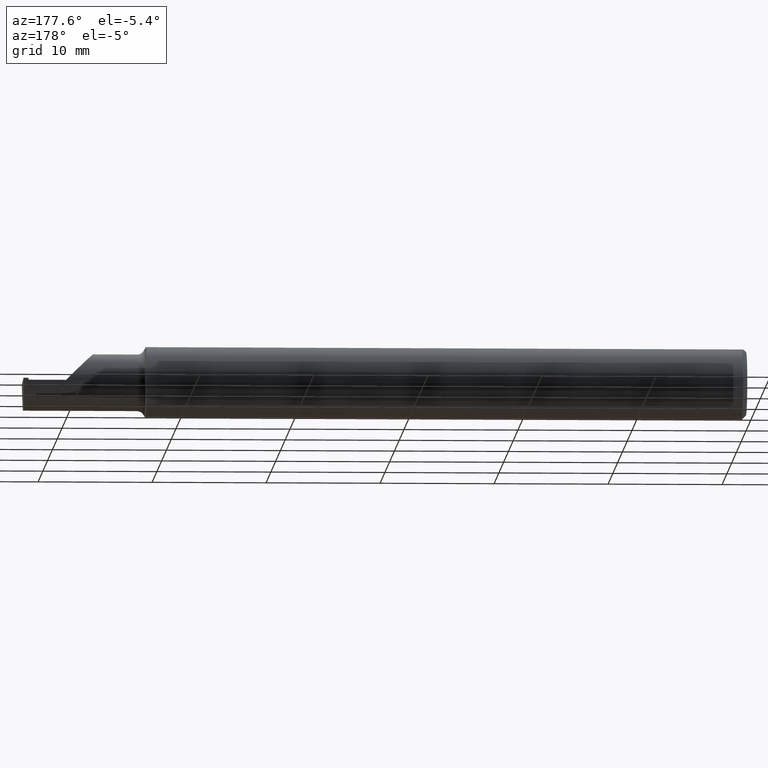
[diagram: clean part render]
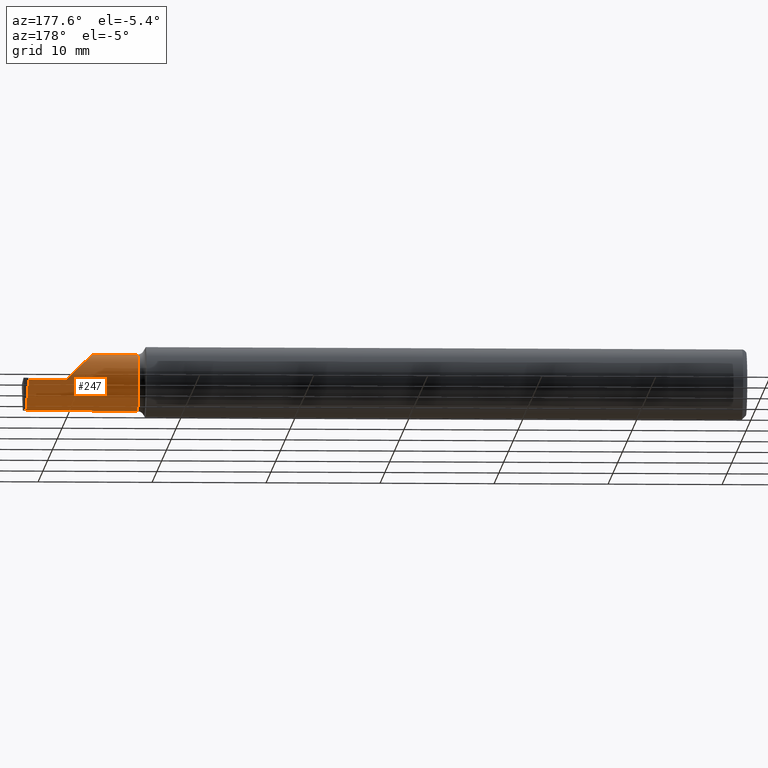
[diagram: same view with one face highlighted and labeled with its STEP entity id]
A machine part, auxiliary view. The second image highlights one B-rep face of the part: STEP entity #247.
In plain terms, the highlighted cylindrical surface (edge-blend (fillet) strip) has radius 2.4892 mm, axis along (-1, -0, -0).
Its self-contained STEP definition (entity closure, byte-faithful):
#3 = AXIS2_PLACEMENT_3D ( 'NONE', #120, #241, #298 ) ;
#6 = EDGE_CURVE ( 'NONE', #556, #52, #243, .T. ) ;
#7 = ORIENTED_EDGE ( 'NONE', *, *, #367, .F. ) ;
#24 = ORIENTED_EDGE ( 'NONE', *, *, #6, .T. ) ;
#35 = CARTESIAN_POINT ( 'NONE',  ( 2.482499999999999929, 0.05414999123725500879, -4.144270477499314721E-05 ) ) ;
#41 =( BOUNDED_CURVE ( )  B_SPLINE_CURVE ( 3, ( #533, #606, #594, #408 ),
 .UNSPECIFIED., .F., .F. ) 
 B_SPLINE_CURVE_WITH_KNOTS ( ( 4, 4 ),
 ( 0.000000000000000000, 1.570796326794896558 ),
 .UNSPECIFIED. ) 
 CURVE ( )  GEOMETRIC_REPRESENTATION_ITEM ( )  RATIONAL_B_SPLINE_CURVE ( ( 1.000000000000000000, 0.8047378541243649375, 0.8047378541243649375, 1.000000000000000000 ) ) 
 REPRESENTATION_ITEM ( '' )  );
#47 = CARTESIAN_POINT ( 'NONE',  ( 2.350000000000000089, 0.05414999999999988572, 1.836970198721028825E-17 ) ) ;
#49 = VERTEX_POINT ( 'NONE', #333 ) ;
#51 = CARTESIAN_POINT ( 'NONE',  ( 2.487354867654527624, 0.002850604310161131225, -0.09799999999999998990 ) ) ;
#52 = VERTEX_POINT ( 'NONE', #35 ) ;
#67 = VECTOR ( 'NONE', #136, 39.37007874015748143 ) ;
#91 = CARTESIAN_POINT ( 'NONE',  ( 2.482499999999999929, 0.05414999123725500879, -4.144270477499314721E-05 ) ) ;
#95 = LINE ( 'NONE', #696, #285 ) ;
#99 = CARTESIAN_POINT ( 'NONE',  ( 2.482499999999999929, 0.05414999999999997593, 5.204738710087130603E-17 ) ) ;
#106 = DIRECTION ( 'NONE',  ( -1.000000000000000000, -0.000000000000000000, -0.000000000000000000 ) ) ;
#120 = CARTESIAN_POINT ( 'NONE',  ( 2.482499999999999929, -0.04385000000000001397, 0.000000000000000000 ) ) ;
#124 = ORIENTED_EDGE ( 'NONE', *, *, #141, .T. ) ;
#132 = ORIENTED_EDGE ( 'NONE', *, *, #293, .F. ) ;
#136 = DIRECTION ( 'NONE',  ( 1.000000000000000000, 0.000000000000000000, 0.000000000000000000 ) ) ;
#141 = EDGE_CURVE ( 'NONE', #158, #49, #95, .T. ) ;
#146 = CARTESIAN_POINT ( 'NONE',  ( 2.252000000000000668, -0.04385000000000001397, 0.09800000000000000377 ) ) ;
#148 = EDGE_CURVE ( 'NONE', #303, #52, #441, .T. ) ;
#158 = VERTEX_POINT ( 'NONE', #336 ) ;
#161 = FACE_OUTER_BOUND ( 'NONE', #478, .T. ) ;
#165 = ORIENTED_EDGE ( 'NONE', *, *, #148, .F. ) ;
#195 = LINE ( 'NONE', #444, #67 ) ;
#202 = VERTEX_POINT ( 'NONE', #360 ) ;
#234 = DIRECTION ( 'NONE',  ( 0.000000000000000000, 0.000000000000000000, 1.000000000000000000 ) ) ;
#241 = DIRECTION ( 'NONE',  ( -1.000000000000000000, -0.000000000000000000, -0.000000000000000000 ) ) ;
#243 = CIRCLE ( 'NONE', #3, 0.09799999999999998990 ) ;
#247 = ADVANCED_FACE ( 'NONE', ( #161 ), #485, .T. ) ;
#253 = EDGE_CURVE ( 'NONE', #425, #570, #41, .T. ) ;
#284 = CARTESIAN_POINT ( 'NONE',  ( 2.100000000000000089, -0.04385000000000001397, 0.000000000000000000 ) ) ;
#285 = VECTOR ( 'NONE', #523, 39.37007874015748143 ) ;
#293 = EDGE_CURVE ( 'NONE', #202, #49, #742, .T. ) ;
#297 = DIRECTION ( 'NONE',  ( -1.000000000000000000, -0.000000000000000000, -0.000000000000000000 ) ) ;
#298 = DIRECTION ( 'NONE',  ( 0.000000000000000000, 0.000000000000000000, 1.000000000000000000 ) ) ;
#299 = AXIS2_PLACEMENT_3D ( 'NONE', #472, #297, #234 ) ;
#303 = VERTEX_POINT ( 'NONE', #545 ) ;
#309 = EDGE_CURVE ( 'NONE', #158, #303, #776, .T. ) ;
#333 = CARTESIAN_POINT ( 'NONE',  ( 2.100000000000000089, -0.04385000000000000009, -0.09800000000000001765 ) ) ;
#336 = CARTESIAN_POINT ( 'NONE',  ( 2.487353376795599758, -0.04385000000000004172, -0.09799999999999998990 ) ) ;
#353 = DIRECTION ( 'NONE',  ( 0.000000000000000000, 0.000000000000000000, 1.000000000000000000 ) ) ;
#360 = CARTESIAN_POINT ( 'NONE',  ( 2.100000000000000089, -0.04385000000000001397, 0.09800000000000001765 ) ) ;
#367 = EDGE_CURVE ( 'NONE', #425, #202, #611, .T. ) ;
#391 = CARTESIAN_POINT ( 'NONE',  ( 2.483160734290017047, 0.05314349951121604548, -0.01618353831829645942 ) ) ;
#397 = CARTESIAN_POINT ( 'NONE',  ( 2.483482208140546099, 0.05115612325138135796, -0.02403823089877876393 ) ) ;
#408 = CARTESIAN_POINT ( 'NONE',  ( 2.350000000000000089, 0.05414999999999988572, 1.836970198721028825E-17 ) ) ;
#416 = AXIS2_PLACEMENT_3D ( 'NONE', #284, #106, #353 ) ;
#421 = CARTESIAN_POINT ( 'NONE',  ( 2.487353376795599758, -0.04385000000000004172, -0.09799999999999998990 ) ) ;
#425 = VERTEX_POINT ( 'NONE', #146 ) ;
#441 =( BOUNDED_CURVE ( )  B_SPLINE_CURVE ( 3, ( #397, #391, #642, #91 ),
 .UNSPECIFIED., .F., .T. ) 
 B_SPLINE_CURVE_WITH_KNOTS ( ( 4, 4 ),
 ( 4.463962699426422098, 4.711356644242684411 ),
 .UNSPECIFIED. ) 
 CURVE ( )  GEOMETRIC_REPRESENTATION_ITEM ( )  RATIONAL_B_SPLINE_CURVE ( ( 1.000000000000000000, 0.9949061863228998437, 0.9949061863228998437, 1.000000000000000000 ) ) 
 REPRESENTATION_ITEM ( '' )  );
#444 = CARTESIAN_POINT ( 'NONE',  ( 2.075000000000000178, 0.05414999999999998981, 5.204748896376247001E-17 ) ) ;
#468 = VECTOR ( 'NONE', #622, 39.37007874015748143 ) ;
#472 = CARTESIAN_POINT ( 'NONE',  ( 2.075000000000000178, -0.04385000000000001397, 0.000000000000000000 ) ) ;
#478 = EDGE_LOOP ( 'NONE', ( #769, #124, #132, #7, #604, #669, #24, #165 ) ) ;
#485 = CYLINDRICAL_SURFACE ( 'NONE', #299, 0.09800000000000000377 ) ;
#523 = DIRECTION ( 'NONE',  ( -1.000000000000000000, -0.000000000000000000, -0.000000000000000000 ) ) ;
#533 = CARTESIAN_POINT ( 'NONE',  ( 2.252000000000000668, -0.04385000000000001397, 0.09800000000000000377 ) ) ;
#536 = EDGE_CURVE ( 'NONE', #570, #556, #195, .T. ) ;
#545 = CARTESIAN_POINT ( 'NONE',  ( 2.483482208140546099, 0.05115612325138135796, -0.02403823089877876393 ) ) ;
#556 = VERTEX_POINT ( 'NONE', #99 ) ;
#566 = CARTESIAN_POINT ( 'NONE',  ( 2.075000000000000178, -0.04385000000000001397, 0.09800000000000000377 ) ) ;
#570 = VERTEX_POINT ( 'NONE', #47 ) ;
#594 = CARTESIAN_POINT ( 'NONE',  ( 2.292592929112563738, 0.05415000000000004532, 0.05740707088743669112 ) ) ;
#604 = ORIENTED_EDGE ( 'NONE', *, *, #253, .T. ) ;
#606 = CARTESIAN_POINT ( 'NONE',  ( 2.252000000000000668, 0.01355707088743670317, 0.09799999999999996214 ) ) ;
#611 = LINE ( 'NONE', #566, #468 ) ;
#622 = DIRECTION ( 'NONE',  ( -1.000000000000000000, -0.000000000000000000, -0.000000000000000000 ) ) ;
#625 = CARTESIAN_POINT ( 'NONE',  ( 2.485853341463134747, 0.03970102213383011613, -0.06931214282740411070 ) ) ;
#642 = CARTESIAN_POINT ( 'NONE',  ( 2.482831655309489793, 0.05414656493488106959, -0.008143655253979793437 ) ) ;
#669 = ORIENTED_EDGE ( 'NONE', *, *, #536, .T. ) ;
#696 = CARTESIAN_POINT ( 'NONE',  ( 2.075000000000000178, -0.04385000000000000703, -0.09800000000000000377 ) ) ;
#736 = CARTESIAN_POINT ( 'NONE',  ( 2.483482208140546099, 0.05115612325138135796, -0.02403823089877876393 ) ) ;
#742 = CIRCLE ( 'NONE', #416, 0.09800000000000001765 ) ;
#769 = ORIENTED_EDGE ( 'NONE', *, *, #309, .F. ) ;
#776 =( BOUNDED_CURVE ( )  B_SPLINE_CURVE ( 3, ( #421, #51, #625, #736 ),
 .UNSPECIFIED., .F., .F. ) 
 B_SPLINE_CURVE_WITH_KNOTS ( ( 4, 4 ),
 ( 3.140983202202990654, 4.463962699426417657 ),
 .UNSPECIFIED. ) 
 CURVE ( )  GEOMETRIC_REPRESENTATION_ITEM ( )  RATIONAL_B_SPLINE_CURVE ( ( 1.000000000000000000, 0.8593853101475611433, 0.8593853101475611433, 1.000000000000000000 ) ) 
 REPRESENTATION_ITEM ( '' )  );